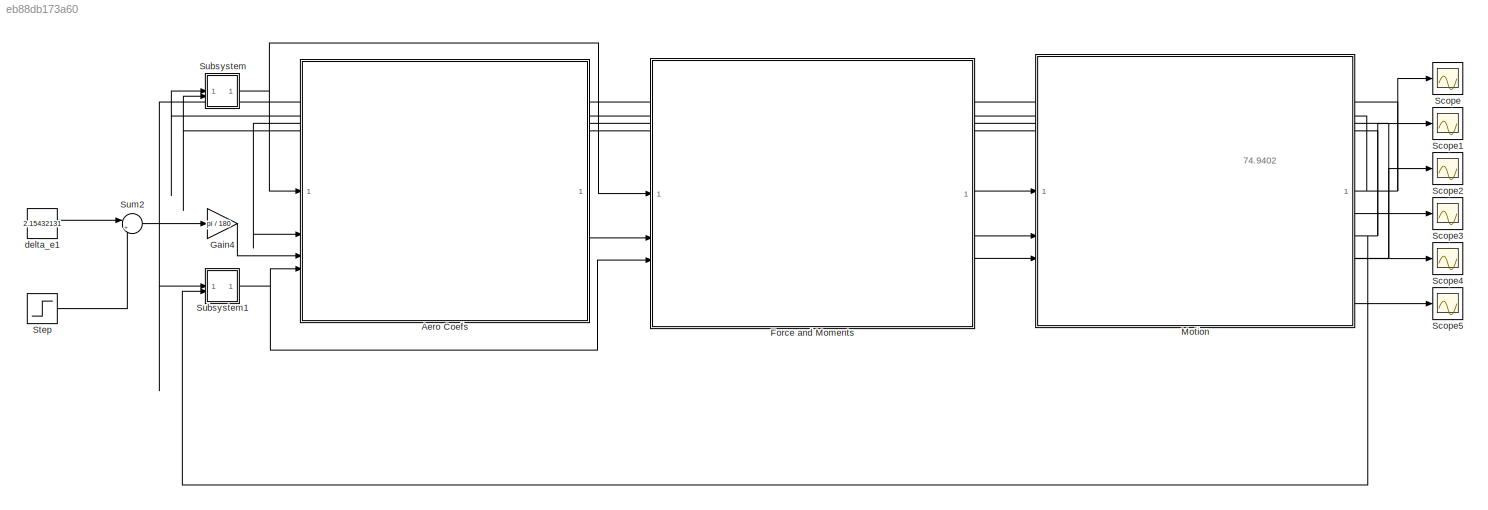
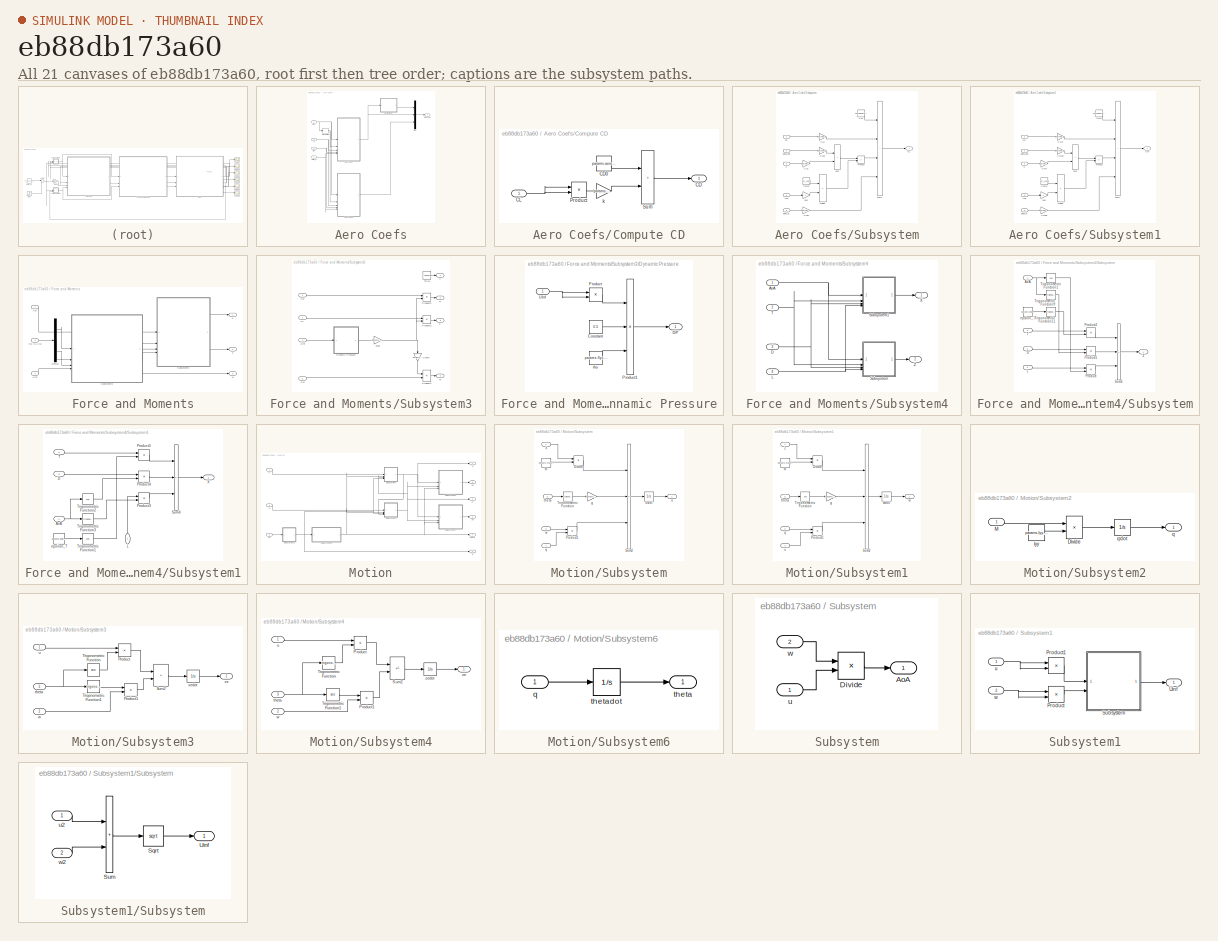
[diagram: thumbnail index - all 21 canvases of the model, root first then tree order]
MODEL slx_eb88db173a60
KIND model
CONFIG AbsTol = auto
CONFIG EnableMultiTasking = off
CONFIG FixedStep = auto
CONFIG MaxStep = auto
CONFIG MinStep = auto
CONFIG RelTol = 1e-3
CONFIG SampleTimeConstraint = Unconstrained
CONFIG SolverName = VariableStepAuto
CONFIG StartTime = 0.0
CONFIG StopTime = 250
BLOCK [SubSystem] Aero Coefs
BLOCK [Inport] Aero Coefs/AoA
BLOCK [Outport] Aero Coefs/CD CL CM
BLOCK [SubSystem] Aero Coefs/Compute CD
BLOCK [Outport] Aero Coefs/Compute CD/CD
BLOCK [Constant] Aero Coefs/Compute CD/CD0
  Value = params.aero.CD0
BLOCK [Inport] Aero Coefs/Compute CD/CL
BLOCK [Product] Aero Coefs/Compute CD/Product
BLOCK [Sum] Aero Coefs/Compute CD/Sum
  IconShape = rectangular
BLOCK [Gain] Aero Coefs/Compute CD/k
  Gain = params.aero.k
BLOCK [Derivative] Aero Coefs/Derivative
BLOCK [Mux] Aero Coefs/Mux
  DisplayOption = bar
  Inputs = 3
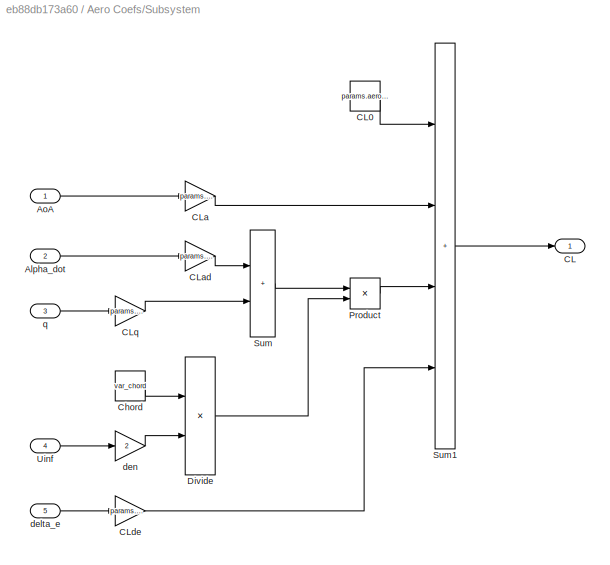
BLOCK [SubSystem] Aero Coefs/Subsystem
BLOCK [Inport] Aero Coefs/Subsystem/Alpha_dot
  Port = 2
BLOCK [Inport] Aero Coefs/Subsystem/AoA
BLOCK [Outport] Aero Coefs/Subsystem/CL
BLOCK [Constant] Aero Coefs/Subsystem/CL0
  Value = params.aero.CL0
BLOCK [Gain] Aero Coefs/Subsystem/CLa
  Gain = params.aero.CLa
BLOCK [Gain] Aero Coefs/Subsystem/CLad
  Gain = params.aero.CLad
BLOCK [Gain] Aero Coefs/Subsystem/CLde
  Gain = params.aero.CLde
BLOCK [Gain] Aero Coefs/Subsystem/CLq
  Gain = params.aero.CLq
BLOCK [Constant] Aero Coefs/Subsystem/Chord
  Value = var_chord
BLOCK [Product] Aero Coefs/Subsystem/Divide
  Inputs = */
BLOCK [Product] Aero Coefs/Subsystem/Product
BLOCK [Sum] Aero Coefs/Subsystem/Sum
  IconShape = rectangular
BLOCK [Sum] Aero Coefs/Subsystem/Sum1
  IconShape = rectangular
  Inputs = ++++
BLOCK [Inport] Aero Coefs/Subsystem/Uinf
  Port = 4
BLOCK [Inport] Aero Coefs/Subsystem/delta_e
  Port = 5
BLOCK [Gain] Aero Coefs/Subsystem/den
  Gain = 2
BLOCK [Inport] Aero Coefs/Subsystem/q
  Port = 3
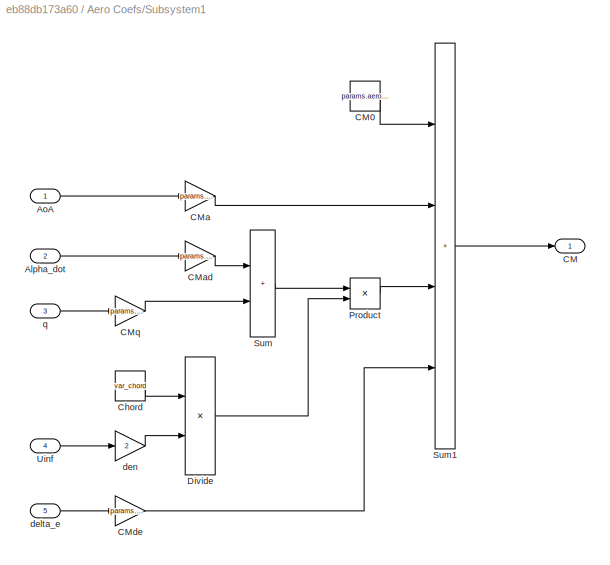
BLOCK [SubSystem] Aero Coefs/Subsystem1
BLOCK [Inport] Aero Coefs/Subsystem1/Alpha_dot
  Port = 2
BLOCK [Inport] Aero Coefs/Subsystem1/AoA
BLOCK [Outport] Aero Coefs/Subsystem1/CM
BLOCK [Constant] Aero Coefs/Subsystem1/CM0
  Value = params.aero.CM0
BLOCK [Gain] Aero Coefs/Subsystem1/CMa
  Gain = params.aero.CMa
BLOCK [Gain] Aero Coefs/Subsystem1/CMad
  Gain = params.aero.CMad
BLOCK [Gain] Aero Coefs/Subsystem1/CMde
  Gain = params.aero.CMde
BLOCK [Gain] Aero Coefs/Subsystem1/CMq
  Gain = params.aero.CMq
BLOCK [Constant] Aero Coefs/Subsystem1/Chord
  Value = var_chord
BLOCK [Product] Aero Coefs/Subsystem1/Divide
  Inputs = */
BLOCK [Product] Aero Coefs/Subsystem1/Product
BLOCK [Sum] Aero Coefs/Subsystem1/Sum
  IconShape = rectangular
BLOCK [Sum] Aero Coefs/Subsystem1/Sum1
  IconShape = rectangular
  Inputs = ++++
BLOCK [Inport] Aero Coefs/Subsystem1/Uinf
  Port = 4
BLOCK [Inport] Aero Coefs/Subsystem1/delta_e
  Port = 5
BLOCK [Gain] Aero Coefs/Subsystem1/den
  Gain = 2
BLOCK [Inport] Aero Coefs/Subsystem1/q
  Port = 3
BLOCK [Inport] Aero Coefs/Uinf
  Port = 4
BLOCK [Inport] Aero Coefs/delta_e
  Port = 3
BLOCK [Inport] Aero Coefs/q
  Port = 2
BLOCK [SubSystem] Force and Moments
BLOCK [Inport] Force and Moments/AoA
BLOCK [Inport] Force and Moments/CD CL CM
  Port = 2
BLOCK [Demux] Force and Moments/Demux
  Outputs = 3
BLOCK [Outport] Force and Moments/M
  Port = 3
BLOCK [SubSystem] Force and Moments/Subsystem3
BLOCK [Inport] Force and Moments/Subsystem3/CD
BLOCK [Inport] Force and Moments/Subsystem3/CL
  Port = 2
BLOCK [Inport] Force and Moments/Subsystem3/CM
  Port = 3
BLOCK [Gain] Force and Moments/Subsystem3/Chord
  Gain = params.chord.si
  NameLocation = left
BLOCK [Outport] Force and Moments/Subsystem3/D
  Port = 2
BLOCK [SubSystem] Force and Moments/Subsystem3/Dynamic Pressure
BLOCK [Constant] Force and Moments/Subsystem3/Dynamic Pressure/Constant
  Value = 0.5
BLOCK [Outport] Force and Moments/Subsystem3/Dynamic Pressure/DP
BLOCK [Product] Force and Moments/Subsystem3/Dynamic Pressure/Product
BLOCK [Product] Force and Moments/Subsystem3/Dynamic Pressure/Product1
  Inputs = 3
BLOCK [Inport] Force and Moments/Subsystem3/Dynamic Pressure/UInf
BLOCK [Constant] Force and Moments/Subsystem3/Dynamic Pressure/rho
  Value = params.flycond.rho
BLOCK [Outport] Force and Moments/Subsystem3/L
  Port = 3
BLOCK [Outport] Force and Moments/Subsystem3/M
  Port = 4
BLOCK [Product] Force and Moments/Subsystem3/Product2
BLOCK [Product] Force and Moments/Subsystem3/Product3
BLOCK [Product] Force and Moments/Subsystem3/Product4
BLOCK [Outport] Force and Moments/Subsystem3/T
BLOCK [Constant] Force and Moments/Subsystem3/Ttrim
  Value = 1.1953e+03
BLOCK [Inport] Force and Moments/Subsystem3/Uinf
  Port = 4
BLOCK [Gain] Force and Moments/Subsystem3/area
  Gain = params.area.si
BLOCK [SubSystem] Force and Moments/Subsystem4
BLOCK [Inport] Force and Moments/Subsystem4/AoA
BLOCK [Inport] Force and Moments/Subsystem4/D
  Port = 3
BLOCK [Inport] Force and Moments/Subsystem4/L
  Port = 4
BLOCK [SubSystem] Force and Moments/Subsystem4/Subsystem
BLOCK [Inport] Force and Moments/Subsystem4/Subsystem/AoA
BLOCK [Inport] Force and Moments/Subsystem4/Subsystem/D
  Port = 3
BLOCK [Inport] Force and Moments/Subsystem4/Subsystem/L
  Port = 4
BLOCK [Product] Force and Moments/Subsystem4/Subsystem/Product
BLOCK [Product] Force and Moments/Subsystem4/Subsystem/Product1
BLOCK [Product] Force and Moments/Subsystem4/Subsystem/Product2
BLOCK [Sum] Force and Moments/Subsystem4/Subsystem/Sum3
  IconShape = rectangular
  Inputs = ---
BLOCK [Inport] Force and Moments/Subsystem4/Subsystem/T
  Port = 2
BLOCK [Trigonometry] Force and Moments/Subsystem4/Subsystem/Trigonometric Function1
  Operator = cos
BLOCK [Trigonometry] Force and Moments/Subsystem4/Subsystem/Trigonometric Function11
BLOCK [Trigonometry] Force and Moments/Subsystem4/Subsystem/Trigonometric Function9
BLOCK [Outport] Force and Moments/Subsystem4/Subsystem/Z
BLOCK [Constant] Force and Moments/Subsystem4/Subsystem/epsilon_T
  Value = params.engine.epsilon_T
BLOCK [SubSystem] Force and Moments/Subsystem4/Subsystem1
BLOCK [Inport] Force and Moments/Subsystem4/Subsystem1/AoA
BLOCK [Inport] Force and Moments/Subsystem4/Subsystem1/D
  Port = 3
BLOCK [Inport] Force and Moments/Subsystem4/Subsystem1/L
  NameLocation = right
  Port = 4
BLOCK [Product] Force and Moments/Subsystem4/Subsystem1/Product3
BLOCK [Product] Force and Moments/Subsystem4/Subsystem1/Product4
BLOCK [Product] Force and Moments/Subsystem4/Subsystem1/Product5
BLOCK [Sum] Force and Moments/Subsystem4/Subsystem1/Sum4
  IconShape = rectangular
  Inputs = +-+
BLOCK [Inport] Force and Moments/Subsystem4/Subsystem1/T
  Port = 2
BLOCK [Trigonometry] Force and Moments/Subsystem4/Subsystem1/Trigonometric Function1
  Operator = cos
BLOCK [Trigonometry] Force and Moments/Subsystem4/Subsystem1/Trigonometric Function2
  Operator = cos
BLOCK [Trigonometry] Force and Moments/Subsystem4/Subsystem1/Trigonometric Function3
BLOCK [Outport] Force and Moments/Subsystem4/Subsystem1/X
BLOCK [Constant] Force and Moments/Subsystem4/Subsystem1/epsilon_T
  Value = params.engine.epsilon_T
BLOCK [Inport] Force and Moments/Subsystem4/T
  Port = 2
BLOCK [Outport] Force and Moments/Subsystem4/X
BLOCK [Outport] Force and Moments/Subsystem4/Z
  Port = 2
BLOCK [Inport] Force and Moments/Uinf
  Port = 3
BLOCK [Outport] Force and Moments/X
BLOCK [Outport] Force and Moments/Z
  Port = 2
BLOCK [Gain] Gain4
  Gain = pi / 180
BLOCK [SubSystem] Motion
BLOCK [Inport] Motion/M
  Port = 3
BLOCK [SubSystem] Motion/Subsystem
BLOCK [Product] Motion/Subsystem/Divide
  Inputs = */
BLOCK [Product] Motion/Subsystem/Product1
BLOCK [Sum] Motion/Subsystem/Sum2
  IconShape = rectangular
  Inputs = +--
BLOCK [Trigonometry] Motion/Subsystem/Trigonometric Function
BLOCK [Inport] Motion/Subsystem/X
BLOCK [Gain] Motion/Subsystem/g
  Gain = params.flycond.gravity
BLOCK [Constant] Motion/Subsystem/m
  Value = params.mass.si
BLOCK [Inport] Motion/Subsystem/q
  Port = 4
BLOCK [Inport] Motion/Subsystem/theta
  Port = 2
BLOCK [Outport] Motion/Subsystem/u
BLOCK [Integrator] Motion/Subsystem/udot
  InitialCondition = u0
BLOCK [Inport] Motion/Subsystem/w
  Port = 3
BLOCK [SubSystem] Motion/Subsystem1
BLOCK [Product] Motion/Subsystem1/Divide
  Inputs = */
BLOCK [Product] Motion/Subsystem1/Product1
BLOCK [Sum] Motion/Subsystem1/Sum2
  IconShape = rectangular
  Inputs = +++
BLOCK [Trigonometry] Motion/Subsystem1/Trigonometric Function
  Operator = cos
BLOCK [Inport] Motion/Subsystem1/Z
BLOCK [Gain] Motion/Subsystem1/g
  Gain = params.flycond.gravity
BLOCK [Constant] Motion/Subsystem1/m
  Value = params.mass.si
BLOCK [Inport] Motion/Subsystem1/q
  Port = 3
BLOCK [Inport] Motion/Subsystem1/theta
  Port = 2
BLOCK [Inport] Motion/Subsystem1/u
  Port = 4
BLOCK [Outport] Motion/Subsystem1/w
BLOCK [Integrator] Motion/Subsystem1/wdot
  InitialCondition = w0
BLOCK [SubSystem] Motion/Subsystem2
BLOCK [Product] Motion/Subsystem2/Divide
  Inputs = */
BLOCK [Constant] Motion/Subsystem2/Iyy
  Value = params.Iyy.si
BLOCK [Inport] Motion/Subsystem2/M
BLOCK [Outport] Motion/Subsystem2/q
BLOCK [Integrator] Motion/Subsystem2/qdot
  InitialCondition = q0
BLOCK [SubSystem] Motion/Subsystem3
BLOCK [Product] Motion/Subsystem3/Product
BLOCK [Product] Motion/Subsystem3/Product1
BLOCK [Sum] Motion/Subsystem3/Sum2
  IconShape = rectangular
BLOCK [Trigonometry] Motion/Subsystem3/Trigonometric Function
  Operator = cos
BLOCK [Trigonometry] Motion/Subsystem3/Trigonometric Function1
BLOCK [Inport] Motion/Subsystem3/theta
  Port = 3
BLOCK [Inport] Motion/Subsystem3/u
BLOCK [Inport] Motion/Subsystem3/w
  Port = 2
BLOCK [Outport] Motion/Subsystem3/xe
BLOCK [Integrator] Motion/Subsystem3/xedot
BLOCK [SubSystem] Motion/Subsystem4
BLOCK [Product] Motion/Subsystem4/Product
BLOCK [Product] Motion/Subsystem4/Product1
BLOCK [Sum] Motion/Subsystem4/Sum2
  IconShape = rectangular
  Inputs = -+
BLOCK [Trigonometry] Motion/Subsystem4/Trigonometric Function
BLOCK [Trigonometry] Motion/Subsystem4/Trigonometric Function1
  Operator = cos
BLOCK [Inport] Motion/Subsystem4/theta
  Port = 3
BLOCK [Inport] Motion/Subsystem4/u
BLOCK [Inport] Motion/Subsystem4/w
  Port = 2
BLOCK [Outport] Motion/Subsystem4/ze
BLOCK [Integrator] Motion/Subsystem4/zedot
BLOCK [SubSystem] Motion/Subsystem6
BLOCK [Inport] Motion/Subsystem6/q
BLOCK [Outport] Motion/Subsystem6/theta
BLOCK [Integrator] Motion/Subsystem6/thetadot
  InitialCondition = theta0
  WrapState = on
  WrappedStateLowerValue = -pi/2
  WrappedStateUpperValue = pi/2
BLOCK [Inport] Motion/X
BLOCK [Inport] Motion/Z
  Port = 2
BLOCK [Outport] Motion/q
  Port = 3
BLOCK [Outport] Motion/theta
  Port = 4
BLOCK [Outport] Motion/u
BLOCK [Outport] Motion/w
  Port = 2
BLOCK [Outport] Motion/xe
  Port = 5
BLOCK [Outport] Motion/ze
  Port = 6
BLOCK [Scope] Scope
  ActiveDisplayYMaximum = 107.0139256984159
  ActiveDisplayYMinimum = 62.649563811287123
  ContainerLayout = {"WindowBounds":[128,48,1280,768],"gridDimensions":{"w":1,"h":1},"tileCount":1,"tileCoverage":1,"columnWeights":1,"rowWeights":1,"tileOccupancy":{"children":[{"id":"/Scope2"},{"id":"/Scope1"},{"id":"/Scope3"},{"id":"/Scope"}]}}  <repeated x4 — deduplicated; at blocks: Scope, Scope1, Scope2, Scope3>
  DataLogging = on
  DataLoggingVariableName = uscope
  Floating = off
  GraphicalSettings = {"Style":{"BackgroundColor":[0.12941176470588237,0.12941176470588237,0.12941176470588237],"AxesColor":[0.07058823529411765,0.07058823529411765,0.07058823529411765],"LabelsColor":[0.8509803921568627,0.8509803921568627,0.8509803921568627],"PreserveColors":false,"Visible":[true],"LineStyle":["-"],"LineWidth":[1.5],"BarWidth":[0.9],"LineColor":["auto"],"LineFaceAlpha":[1],"LineEdgeAlpha":[1],"Marker":...<+1958ch>
  MultipleDisplayCache = [{"MaxYLimMag":107.0139256984159,"MaxYLimReal":107.0139256984159,"MinYLimMag":62.649563811287123,"MinYLimReal":62.649563811287123,"PlotAsMagnitudePhase":false,"ShowGrid":true,"ShowLegend":false,"Title":"%<SignalLabel>","YLabel":""}]
  NumInputPorts = 1
  ScopeFrameLocation = container
  Visible = on
  WasSavedAsWebScope = on
  WindowPosition = [128.000000,48.000000,1280.000000,768.000000,]
BLOCK [Scope] Scope1
  ActiveDisplayYMaximum = 0.22191719710423907
  ActiveDisplayYMinimum = -4.4352547739381523
  DataLogging = on
  DataLoggingVariableName = wscope
  Floating = off
  GraphicalSettings = {"Style":{"BackgroundColor":[0.12941176470588237,0.12941176470588237,0.12941176470588237],"AxesColor":[0.07058823529411765,0.07058823529411765,0.07058823529411765],"LabelsColor":[0.8509803921568627,0.8509803921568627,0.8509803921568627],"PreserveColors":false,"Visible":[true],"LineStyle":["-"],"LineWidth":[1.5],"BarWidth":[0.9],"LineColor":["auto"],"LineFaceAlpha":[1],"LineEdgeAlpha":[1],"Marker":...<+1936ch>
  MultipleDisplayCache = [{"MaxYLimMag":4.4352547739381523,"MaxYLimReal":0.22191719710423907,"MinYLimMag":0,"MinYLimReal":-4.4352547739381523,"PlotAsMagnitudePhase":false,"ShowGrid":true,"ShowLegend":false,"Title":"%<SignalLabel>","YLabel":""}]
  NumInputPorts = 1
  ScopeFrameLocation = container
  Visible = on
  WasSavedAsWebScope = on
  WindowPosition = [128.000000,48.000000,1280.000000,768.000000,]
BLOCK [Scope] Scope2
  ActiveDisplayYMaximum = 0.033463876352101581
  ActiveDisplayYMinimum = -0.082313536113148844
  DataLogging = on
  DataLoggingVariableName = qscope
  Floating = off
  GraphicalSettings = {"Style":{"BackgroundColor":[0.12941176470588237,0.12941176470588237,0.12941176470588237],"AxesColor":[0.07058823529411765,0.07058823529411765,0.07058823529411765],"LabelsColor":[0.8509803921568627,0.8509803921568627,0.8509803921568627],"PreserveColors":false,"Visible":[true],"LineStyle":["-"],"LineWidth":[1.5],"BarWidth":[0.9],"LineColor":["auto"],"LineFaceAlpha":[1],"LineEdgeAlpha":[1],"Marker":...<+1936ch>
  MultipleDisplayCache = [{"MaxYLimMag":0.082313536113148844,"MaxYLimReal":0.033463876352101581,"MinYLimMag":0,"MinYLimReal":-0.082313536113148844,"PlotAsMagnitudePhase":false,"ShowGrid":true,"ShowLegend":false,"Title":"%<SignalLabel>","YLabel":""}]
  NumInputPorts = 1
  ScopeFrameLocation = container
  Visible = on
  WasSavedAsWebScope = on
  WindowPosition = [128.000000,48.000000,1280.000000,768.000000,]
BLOCK [Scope] Scope3
  ActiveDisplayYMaximum = 0.083961715680691468
  ActiveDisplayYMinimum = -0.3724536938312259
  DataLogging = on
  DataLoggingVariableName = thetascope
  Floating = off
  GraphicalSettings = {"Style":{"BackgroundColor":[0.12941176470588237,0.12941176470588237,0.12941176470588237],"AxesColor":[0.07058823529411765,0.07058823529411765,0.07058823529411765],"LabelsColor":[0.8509803921568627,0.8509803921568627,0.8509803921568627],"PreserveColors":false,"Visible":[true],"LineStyle":["-"],"LineWidth":[1.5],"BarWidth":[0.9],"LineColor":["auto"],"LineFaceAlpha":[1],"LineEdgeAlpha":[1],"Marker":...<+1934ch>
  MultipleDisplayCache = [{"MaxYLimMag":0.3724536938312259,"MaxYLimReal":0.083961715680691468,"MinYLimMag":0,"MinYLimReal":-0.3724536938312259,"PlotAsMagnitudePhase":false,"ShowGrid":true,"ShowLegend":false,"Title":"%<SignalLabel>","YLabel":""}]
  NumInputPorts = 1
  ScopeFrameLocation = container
  Visible = on
  WasSavedAsWebScope = on
  WindowPosition = [128.000000,48.000000,1280.000000,768.000000,]
BLOCK [Scope] Scope4
  ActiveDisplayYMaximum = 24939.74683
  ActiveDisplayYMinimum = -2771.08298
  DataLogging = on
  DataLoggingVariableName = xescope
  Floating = off
  GraphicalSettings = {"GraphicalSettings":{"LegacySettings":true,"Style":{"Style":{"AxesColor":"[0 0 0]","ChannelNames":[""],"ColorOrder":"[1 0.909803921568627 0.392156862745098;0.149019607843137 0.549019607843137 0.866666666666667;0.96078431372549 0.466666666666667 0.16078431372549;0.286274509803922 0.858823529411765 0.250980392156863;0.752941176470588 0.36078431372549 0.984313725490196;0.423529411764706 0.9568627450...<+432ch>
  MultipleDisplayCache = [{"MaxYLimMag":24939.74683,"MaxYLimReal":24939.74683,"MinYLimMag":0,"MinYLimReal":-2771.08298,"PlotAsMagnitudePhase":false,"ShowGrid":true,"ShowLegend":false,"Title":"%<SignalLabel>","YLabel":""}]
  NumInputPorts = 1
  WasSavedAsWebScope = on
  WindowPosition = [1616 864 602 438]
BLOCK [Scope] Scope5
  ActiveDisplayYMaximum = 1718.57219
  ActiveDisplayYMinimum = -190.95339
  DataLogging = on
  DataLoggingVariableName = zescope
  Floating = off
  GraphicalSettings = {"GraphicalSettings":{"LegacySettings":true,"Style":{"Style":{"AxesColor":"[0 0 0]","ChannelNames":[""],"ColorOrder":"[1 0.909803921568627 0.392156862745098;0.149019607843137 0.549019607843137 0.866666666666667;0.96078431372549 0.466666666666667 0.16078431372549;0.286274509803922 0.858823529411765 0.250980392156863;0.752941176470588 0.36078431372549 0.984313725490196;0.423529411764706 0.9568627450...<+432ch>
  MultipleDisplayCache = [{"MaxYLimMag":1718.57219,"MaxYLimReal":1718.57219,"MinYLimMag":0,"MinYLimReal":-190.95339,"PlotAsMagnitudePhase":false,"ShowGrid":true,"ShowLegend":false,"Title":"%<SignalLabel>","YLabel":""}]
  NumInputPorts = 1
  WasSavedAsWebScope = on
  WindowPosition = [1616 864 602 438]
BLOCK [Step] Step
  SampleTime = 0
  Time = 0
BLOCK [SubSystem] Subsystem
BLOCK [Outport] Subsystem/AoA
BLOCK [Product] Subsystem/Divide
  Inputs = */
BLOCK [Inport] Subsystem/u
BLOCK [Inport] Subsystem/w
  Port = 2
BLOCK [SubSystem] Subsystem1
BLOCK [Product] Subsystem1/Product
BLOCK [Product] Subsystem1/Product1
BLOCK [SubSystem] Subsystem1/Subsystem
BLOCK [Sqrt] Subsystem1/Subsystem/Sqrt
BLOCK [Sum] Subsystem1/Subsystem/Sum
  IconShape = rectangular
BLOCK [Outport] Subsystem1/Subsystem/Uinf
BLOCK [Inport] Subsystem1/Subsystem/u2
BLOCK [Inport] Subsystem1/Subsystem/w2
  Port = 2
BLOCK [Outport] Subsystem1/Uinf
BLOCK [Inport] Subsystem1/u
BLOCK [Inport] Subsystem1/w
  Port = 2
BLOCK [Sum] Sum2
  Inputs = |++
BLOCK [Constant] delta_e1
  Value = 2.15432131
ANNOTATION (root): 74.9402
NET Aero Coefs/AoA:1 -> Aero Coefs/Derivative:1, Aero Coefs/Subsystem1:1, Aero Coefs/Subsystem:1
LINE Aero Coefs/Compute CD/CD0:1 -> Aero Coefs/Compute CD/Sum:1
NET Aero Coefs/Compute CD/CL:1 -> Aero Coefs/Compute CD/Product:1, Aero Coefs/Compute CD/Product:2
LINE Aero Coefs/Compute CD/Product:1 -> Aero Coefs/Compute CD/k:1
LINE Aero Coefs/Compute CD/Sum:1 -> Aero Coefs/Compute CD/CD:1
LINE Aero Coefs/Compute CD/k:1 -> Aero Coefs/Compute CD/Sum:2
LINE Aero Coefs/Compute CD:1 -> Aero Coefs/Mux:1
NET Aero Coefs/Derivative:1 -> Aero Coefs/Subsystem1:2, Aero Coefs/Subsystem:2
LINE Aero Coefs/Mux:1 -> Aero Coefs/CD CL CM:1
LINE Aero Coefs/Subsystem/Alpha_dot:1 -> Aero Coefs/Subsystem/CLad:1
LINE Aero Coefs/Subsystem/AoA:1 -> Aero Coefs/Subsystem/CLa:1
LINE Aero Coefs/Subsystem/CL0:1 -> Aero Coefs/Subsystem/Sum1:1
LINE Aero Coefs/Subsystem/CLa:1 -> Aero Coefs/Subsystem/Sum1:2
LINE Aero Coefs/Subsystem/CLad:1 -> Aero Coefs/Subsystem/Sum:1
LINE Aero Coefs/Subsystem/CLde:1 -> Aero Coefs/Subsystem/Sum1:4
LINE Aero Coefs/Subsystem/CLq:1 -> Aero Coefs/Subsystem/Sum:2
LINE Aero Coefs/Subsystem/Chord:1 -> Aero Coefs/Subsystem/Divide:1
LINE Aero Coefs/Subsystem/Divide:1 -> Aero Coefs/Subsystem/Product:2
LINE Aero Coefs/Subsystem/Product:1 -> Aero Coefs/Subsystem/Sum1:3
LINE Aero Coefs/Subsystem/Sum1:1 -> Aero Coefs/Subsystem/CL:1
LINE Aero Coefs/Subsystem/Sum:1 -> Aero Coefs/Subsystem/Product:1
LINE Aero Coefs/Subsystem/Uinf:1 -> Aero Coefs/Subsystem/den:1
LINE Aero Coefs/Subsystem/delta_e:1 -> Aero Coefs/Subsystem/CLde:1
LINE Aero Coefs/Subsystem/den:1 -> Aero Coefs/Subsystem/Divide:2
LINE Aero Coefs/Subsystem/q:1 -> Aero Coefs/Subsystem/CLq:1
LINE Aero Coefs/Subsystem1/Alpha_dot:1 -> Aero Coefs/Subsystem1/CMad:1
LINE Aero Coefs/Subsystem1/AoA:1 -> Aero Coefs/Subsystem1/CMa:1
LINE Aero Coefs/Subsystem1/CM0:1 -> Aero Coefs/Subsystem1/Sum1:1
LINE Aero Coefs/Subsystem1/CMa:1 -> Aero Coefs/Subsystem1/Sum1:2
LINE Aero Coefs/Subsystem1/CMad:1 -> Aero Coefs/Subsystem1/Sum:1
LINE Aero Coefs/Subsystem1/CMde:1 -> Aero Coefs/Subsystem1/Sum1:4
LINE Aero Coefs/Subsystem1/CMq:1 -> Aero Coefs/Subsystem1/Sum:2
LINE Aero Coefs/Subsystem1/Chord:1 -> Aero Coefs/Subsystem1/Divide:1
LINE Aero Coefs/Subsystem1/Divide:1 -> Aero Coefs/Subsystem1/Product:2
LINE Aero Coefs/Subsystem1/Product:1 -> Aero Coefs/Subsystem1/Sum1:3
LINE Aero Coefs/Subsystem1/Sum1:1 -> Aero Coefs/Subsystem1/CM:1
LINE Aero Coefs/Subsystem1/Sum:1 -> Aero Coefs/Subsystem1/Product:1
LINE Aero Coefs/Subsystem1/Uinf:1 -> Aero Coefs/Subsystem1/den:1
LINE Aero Coefs/Subsystem1/delta_e:1 -> Aero Coefs/Subsystem1/CMde:1
LINE Aero Coefs/Subsystem1/den:1 -> Aero Coefs/Subsystem1/Divide:2
LINE Aero Coefs/Subsystem1/q:1 -> Aero Coefs/Subsystem1/CMq:1
LINE Aero Coefs/Subsystem1:1 -> Aero Coefs/Mux:3
NET Aero Coefs/Subsystem:1 -> Aero Coefs/Compute CD:1, Aero Coefs/Mux:2
NET Aero Coefs/Uinf:1 -> Aero Coefs/Subsystem1:4, Aero Coefs/Subsystem:4
NET Aero Coefs/delta_e:1 -> Aero Coefs/Subsystem1:5, Aero Coefs/Subsystem:5
NET Aero Coefs/q:1 -> Aero Coefs/Subsystem1:3, Aero Coefs/Subsystem:3
LINE Aero Coefs:1 -> Force and Moments:2
LINE Force and Moments/AoA:1 -> Force and Moments/Subsystem4:1
LINE Force and Moments/CD CL CM:1 -> Force and Moments/Demux:1
LINE Force and Moments/Demux:1 -> Force and Moments/Subsystem3:1
LINE Force and Moments/Demux:2 -> Force and Moments/Subsystem3:2
LINE Force and Moments/Demux:3 -> Force and Moments/Subsystem3:3
LINE Force and Moments/Subsystem3/CD:1 -> Force and Moments/Subsystem3/Product2:1
LINE Force and Moments/Subsystem3/CL:1 -> Force and Moments/Subsystem3/Product3:1
LINE Force and Moments/Subsystem3/CM:1 -> Force and Moments/Subsystem3/Product4:2
LINE Force and Moments/Subsystem3/Chord:1 -> Force and Moments/Subsystem3/Product4:1
LINE Force and Moments/Subsystem3/Dynamic Pressure/Constant:1 -> Force and Moments/Subsystem3/Dynamic Pressure/Product1:2
LINE Force and Moments/Subsystem3/Dynamic Pressure/Product1:1 -> Force and Moments/Subsystem3/Dynamic Pressure/DP:1
LINE Force and Moments/Subsystem3/Dynamic Pressure/Product:1 -> Force and Moments/Subsystem3/Dynamic Pressure/Product1:1
NET Force and Moments/Subsystem3/Dynamic Pressure/UInf:1 -> Force and Moments/Subsystem3/Dynamic Pressure/Product:1, Force and Moments/Subsystem3/Dynamic Pressure/Product:2
LINE Force and Moments/Subsystem3/Dynamic Pressure/rho:1 -> Force and Moments/Subsystem3/Dynamic Pressure/Product1:3
LINE Force and Moments/Subsystem3/Dynamic Pressure:1 -> Force and Moments/Subsystem3/area:1
LINE Force and Moments/Subsystem3/Product2:1 -> Force and Moments/Subsystem3/D:1
LINE Force and Moments/Subsystem3/Product3:1 -> Force and Moments/Subsystem3/L:1
LINE Force and Moments/Subsystem3/Product4:1 -> Force and Moments/Subsystem3/M:1
LINE Force and Moments/Subsystem3/Ttrim:1 -> Force and Moments/Subsystem3/T:1
LINE Force and Moments/Subsystem3/Uinf:1 -> Force and Moments/Subsystem3/Dynamic Pressure:1
NET Force and Moments/Subsystem3/area:1 -> Force and Moments/Subsystem3/Chord:1, Force and Moments/Subsystem3/Product2:2, Force and Moments/Subsystem3/Product3:2
LINE Force and Moments/Subsystem3:1 -> Force and Moments/Subsystem4:2
LINE Force and Moments/Subsystem3:2 -> Force and Moments/Subsystem4:3
LINE Force and Moments/Subsystem3:3 -> Force and Moments/Subsystem4:4
LINE Force and Moments/Subsystem3:4 -> Force and Moments/M:1
NET Force and Moments/Subsystem4/AoA:1 -> Force and Moments/Subsystem4/Subsystem1:1, Force and Moments/Subsystem4/Subsystem:1
NET Force and Moments/Subsystem4/D:1 -> Force and Moments/Subsystem4/Subsystem1:3, Force and Moments/Subsystem4/Subsystem:3
NET Force and Moments/Subsystem4/L:1 -> Force and Moments/Subsystem4/Subsystem1:4, Force and Moments/Subsystem4/Subsystem:4
NET Force and Moments/Subsystem4/Subsystem/AoA:1 -> Force and Moments/Subsystem4/Subsystem/Trigonometric Function1:1, Force and Moments/Subsystem4/Subsystem/Trigonometric Function9:1
LINE Force and Moments/Subsystem4/Subsystem/D:1 -> Force and Moments/Subsystem4/Subsystem/Product1:1
LINE Force and Moments/Subsystem4/Subsystem/L:1 -> Force and Moments/Subsystem4/Subsystem/Product:1
LINE Force and Moments/Subsystem4/Subsystem/Product1:1 -> Force and Moments/Subsystem4/Subsystem/Sum3:2
LINE Force and Moments/Subsystem4/Subsystem/Product2:1 -> Force and Moments/Subsystem4/Subsystem/Sum3:1
LINE Force and Moments/Subsystem4/Subsystem/Product:1 -> Force and Moments/Subsystem4/Subsystem/Sum3:3
LINE Force and Moments/Subsystem4/Subsystem/Sum3:1 -> Force and Moments/Subsystem4/Subsystem/Z:1
LINE Force and Moments/Subsystem4/Subsystem/T:1 -> Force and Moments/Subsystem4/Subsystem/Product2:1
LINE Force and Moments/Subsystem4/Subsystem/Trigonometric Function11:1 -> Force and Moments/Subsystem4/Subsystem/Product2:2
LINE Force and Moments/Subsystem4/Subsystem/Trigonometric Function1:1 -> Force and Moments/Subsystem4/Subsystem/Product:2
LINE Force and Moments/Subsystem4/Subsystem/Trigonometric Function9:1 -> Force and Moments/Subsystem4/Subsystem/Product1:2
LINE Force and Moments/Subsystem4/Subsystem/epsilon_T:1 -> Force and Moments/Subsystem4/Subsystem/Trigonometric Function11:1
NET Force and Moments/Subsystem4/Subsystem1/AoA:1 -> Force and Moments/Subsystem4/Subsystem1/Trigonometric Function2:1, Force and Moments/Subsystem4/Subsystem1/Trigonometric Function3:1
LINE Force and Moments/Subsystem4/Subsystem1/D:1 -> Force and Moments/Subsystem4/Subsystem1/Product4:1
LINE Force and Moments/Subsystem4/Subsystem1/L:1 -> Force and Moments/Subsystem4/Subsystem1/Product3:1
LINE Force and Moments/Subsystem4/Subsystem1/Product3:1 -> Force and Moments/Subsystem4/Subsystem1/Sum4:3
LINE Force and Moments/Subsystem4/Subsystem1/Product4:1 -> Force and Moments/Subsystem4/Subsystem1/Sum4:2
LINE Force and Moments/Subsystem4/Subsystem1/Product5:1 -> Force and Moments/Subsystem4/Subsystem1/Sum4:1
LINE Force and Moments/Subsystem4/Subsystem1/Sum4:1 -> Force and Moments/Subsystem4/Subsystem1/X:1
LINE Force and Moments/Subsystem4/Subsystem1/T:1 -> Force and Moments/Subsystem4/Subsystem1/Product5:1
LINE Force and Moments/Subsystem4/Subsystem1/Trigonometric Function1:1 -> Force and Moments/Subsystem4/Subsystem1/Product5:2
LINE Force and Moments/Subsystem4/Subsystem1/Trigonometric Function2:1 -> Force and Moments/Subsystem4/Subsystem1/Product4:2
LINE Force and Moments/Subsystem4/Subsystem1/Trigonometric Function3:1 -> Force and Moments/Subsystem4/Subsystem1/Product3:2
LINE Force and Moments/Subsystem4/Subsystem1/epsilon_T:1 -> Force and Moments/Subsystem4/Subsystem1/Trigonometric Function1:1
LINE Force and Moments/Subsystem4/Subsystem1:1 -> Force and Moments/Subsystem4/X:1
LINE Force and Moments/Subsystem4/Subsystem:1 -> Force and Moments/Subsystem4/Z:1
NET Force and Moments/Subsystem4/T:1 -> Force and Moments/Subsystem4/Subsystem1:2, Force and Moments/Subsystem4/Subsystem:2
LINE Force and Moments/Subsystem4:1 -> Force and Moments/X:1
LINE Force and Moments/Subsystem4:2 -> Force and Moments/Z:1
LINE Force and Moments/Uinf:1 -> Force and Moments/Subsystem3:4
LINE Force and Moments:1 -> Motion:1
LINE Force and Moments:2 -> Motion:2
LINE Force and Moments:3 -> Motion:3
LINE Gain4:1 -> Aero Coefs:3
LINE Motion/M:1 -> Motion/Subsystem2:1
LINE Motion/Subsystem/Divide:1 -> Motion/Subsystem/Sum2:1
LINE Motion/Subsystem/Product1:1 -> Motion/Subsystem/Sum2:3
LINE Motion/Subsystem/Sum2:1 -> Motion/Subsystem/udot:1
LINE Motion/Subsystem/Trigonometric Function:1 -> Motion/Subsystem/g:1
LINE Motion/Subsystem/X:1 -> Motion/Subsystem/Divide:1
LINE Motion/Subsystem/g:1 -> Motion/Subsystem/Sum2:2
LINE Motion/Subsystem/m:1 -> Motion/Subsystem/Divide:2
LINE Motion/Subsystem/q:1 -> Motion/Subsystem/Product1:2
LINE Motion/Subsystem/theta:1 -> Motion/Subsystem/Trigonometric Function:1
LINE Motion/Subsystem/udot:1 -> Motion/Subsystem/u:1
LINE Motion/Subsystem/w:1 -> Motion/Subsystem/Product1:1
LINE Motion/Subsystem1/Divide:1 -> Motion/Subsystem1/Sum2:1
LINE Motion/Subsystem1/Product1:1 -> Motion/Subsystem1/Sum2:3
LINE Motion/Subsystem1/Sum2:1 -> Motion/Subsystem1/wdot:1
LINE Motion/Subsystem1/Trigonometric Function:1 -> Motion/Subsystem1/g:1
LINE Motion/Subsystem1/Z:1 -> Motion/Subsystem1/Divide:1
LINE Motion/Subsystem1/g:1 -> Motion/Subsystem1/Sum2:2
LINE Motion/Subsystem1/m:1 -> Motion/Subsystem1/Divide:2
LINE Motion/Subsystem1/q:1 -> Motion/Subsystem1/Product1:1
LINE Motion/Subsystem1/theta:1 -> Motion/Subsystem1/Trigonometric Function:1
LINE Motion/Subsystem1/u:1 -> Motion/Subsystem1/Product1:2
LINE Motion/Subsystem1/wdot:1 -> Motion/Subsystem1/w:1
NET Motion/Subsystem1:1 -> Motion/Subsystem3:2, Motion/Subsystem4:2, Motion/Subsystem:3, Motion/w:1
LINE Motion/Subsystem2/Divide:1 -> Motion/Subsystem2/qdot:1
LINE Motion/Subsystem2/Iyy:1 -> Motion/Subsystem2/Divide:2
LINE Motion/Subsystem2/M:1 -> Motion/Subsystem2/Divide:1
LINE Motion/Subsystem2/qdot:1 -> Motion/Subsystem2/q:1
NET Motion/Subsystem2:1 -> Motion/Subsystem1:3, Motion/Subsystem6:1, Motion/Subsystem:4, Motion/q:1
LINE Motion/Subsystem3/Product1:1 -> Motion/Subsystem3/Sum2:2
LINE Motion/Subsystem3/Product:1 -> Motion/Subsystem3/Sum2:1
LINE Motion/Subsystem3/Sum2:1 -> Motion/Subsystem3/xedot:1
LINE Motion/Subsystem3/Trigonometric Function1:1 -> Motion/Subsystem3/Product1:1
LINE Motion/Subsystem3/Trigonometric Function:1 -> Motion/Subsystem3/Product:2
NET Motion/Subsystem3/theta:1 -> Motion/Subsystem3/Trigonometric Function1:1, Motion/Subsystem3/Trigonometric Function:1
LINE Motion/Subsystem3/u:1 -> Motion/Subsystem3/Product:1
LINE Motion/Subsystem3/w:1 -> Motion/Subsystem3/Product1:2
LINE Motion/Subsystem3/xedot:1 -> Motion/Subsystem3/xe:1
LINE Motion/Subsystem3:1 -> Motion/xe:1
LINE Motion/Subsystem4/Product1:1 -> Motion/Subsystem4/Sum2:2
LINE Motion/Subsystem4/Product:1 -> Motion/Subsystem4/Sum2:1
LINE Motion/Subsystem4/Sum2:1 -> Motion/Subsystem4/zedot:1
LINE Motion/Subsystem4/Trigonometric Function1:1 -> Motion/Subsystem4/Product1:1
LINE Motion/Subsystem4/Trigonometric Function:1 -> Motion/Subsystem4/Product:2
NET Motion/Subsystem4/theta:1 -> Motion/Subsystem4/Trigonometric Function1:1, Motion/Subsystem4/Trigonometric Function:1
LINE Motion/Subsystem4/u:1 -> Motion/Subsystem4/Product:1
LINE Motion/Subsystem4/w:1 -> Motion/Subsystem4/Product1:2
LINE Motion/Subsystem4/zedot:1 -> Motion/Subsystem4/ze:1
LINE Motion/Subsystem4:1 -> Motion/ze:1
LINE Motion/Subsystem6/q:1 -> Motion/Subsystem6/thetadot:1
LINE Motion/Subsystem6/thetadot:1 -> Motion/Subsystem6/theta:1
NET Motion/Subsystem6:1 -> Motion/Subsystem1:2, Motion/Subsystem3:3, Motion/Subsystem4:3, Motion/Subsystem:2, Motion/theta:1
NET Motion/Subsystem:1 -> Motion/Subsystem1:4, Motion/Subsystem3:1, Motion/Subsystem4:1, Motion/u:1
LINE Motion/X:1 -> Motion/Subsystem:1
LINE Motion/Z:1 -> Motion/Subsystem1:1
NET Motion:1 -> Scope:1, Subsystem1:1, Subsystem:1
NET Motion:2 -> Scope1:1, Subsystem1:2, Subsystem:2
NET Motion:3 -> Aero Coefs:2, Scope2:1
LINE Motion:4 -> Scope3:1
LINE Motion:5 -> Scope4:1
LINE Motion:6 -> Scope5:1
LINE Step:1 -> Sum2:2
LINE Subsystem/Divide:1 -> Subsystem/AoA:1
LINE Subsystem/u:1 -> Subsystem/Divide:2
LINE Subsystem/w:1 -> Subsystem/Divide:1
LINE Subsystem1/Product1:1 -> Subsystem1/Subsystem:1
LINE Subsystem1/Product:1 -> Subsystem1/Subsystem:2
LINE Subsystem1/Subsystem/Sqrt:1 -> Subsystem1/Subsystem/Uinf:1
LINE Subsystem1/Subsystem/Sum:1 -> Subsystem1/Subsystem/Sqrt:1
LINE Subsystem1/Subsystem/u2:1 -> Subsystem1/Subsystem/Sum:1
LINE Subsystem1/Subsystem/w2:1 -> Subsystem1/Subsystem/Sum:2
LINE Subsystem1/Subsystem:1 -> Subsystem1/Uinf:1
NET Subsystem1/u:1 -> Subsystem1/Product1:1, Subsystem1/Product1:2
NET Subsystem1/w:1 -> Subsystem1/Product:1, Subsystem1/Product:2
NET Subsystem1:1 -> Aero Coefs:4, Force and Moments:3
NET Subsystem:1 -> Aero Coefs:1, Force and Moments:1
LINE Sum2:1 -> Gain4:1
LINE delta_e1:1 -> Sum2:1
note: NET lines group one-source signal fan-out (src -> all destinations, sorted); 1:1 wires keep LINE
